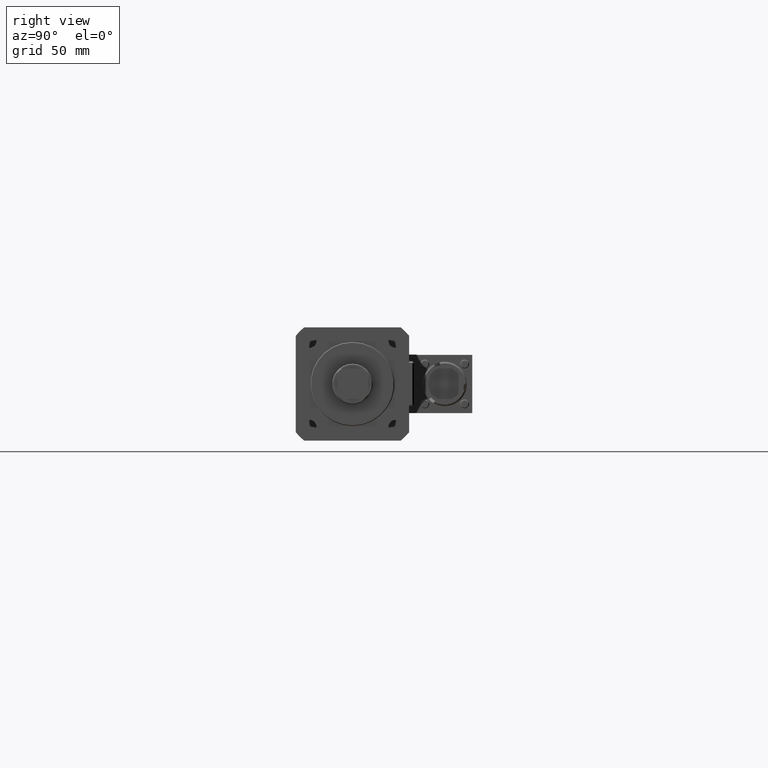
[diagram: clean part render]
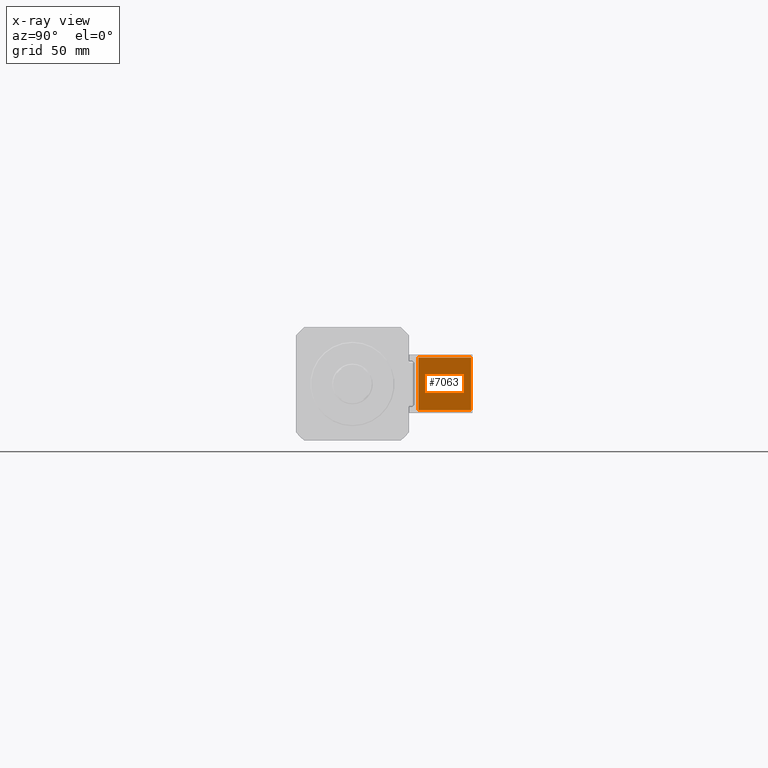
[diagram: x-ray — body ghosted, one internal face saturated and labeled with its STEP entity id]
A machine part, right view, then the same camera in x-ray: the body is ghosted and one INTERNAL B-rep face — a face not visible from any outside direction — is saturated and labeled: STEP entity #7063.
In plain terms, the highlighted planar face has unit normal (1, 0, -0).
Its self-contained STEP definition (entity closure, byte-faithful):
#251 = EDGE_CURVE ( 'NONE', #6156, #6126, #2832, .T. ) ;
#659 = LINE ( 'NONE', #2616, #7862 ) ;
#796 = AXIS2_PLACEMENT_3D ( 'NONE', #1244, #6110, #1924 ) ;
#985 = CARTESIAN_POINT ( 'NONE',  ( -347.0000000000000600, 40.73000000000001100, 16.27000000000000700 ) ) ;
#1244 = CARTESIAN_POINT ( 'NONE',  ( -347.0000000000000600, 0.0000000000000000000, 0.0000000000000000000 ) ) ;
#1510 = CARTESIAN_POINT ( 'NONE',  ( -347.0000000000000600, 73.27000000000001000, -16.26999999999998900 ) ) ;
#1599 = ORIENTED_EDGE ( 'NONE', *, *, #251, .T. ) ;
#1661 = ORIENTED_EDGE ( 'NONE', *, *, #8368, .T. ) ;
#1683 = DIRECTION ( 'NONE',  ( -0.0000000000000000000, -1.000000000000000000, -1.066209880747884100E-016 ) ) ;
#1766 = LINE ( 'NONE', #3824, #5693 ) ;
#1787 = CARTESIAN_POINT ( 'NONE',  ( -347.0000000000000600, 40.73000000000001100, -16.26999999999999200 ) ) ;
#1924 = DIRECTION ( 'NONE',  ( -0.0000000000000000000, 0.0000000000000000000, -1.000000000000000000 ) ) ;
#2218 = EDGE_CURVE ( 'NONE', #6126, #3197, #1766, .T. ) ;
#2616 = CARTESIAN_POINT ( 'NONE',  ( -347.0000000000000600, 73.27000000000001000, -16.26999999999998900 ) ) ;
#2762 = VERTEX_POINT ( 'NONE', #5826 ) ;
#2832 = LINE ( 'NONE', #3487, #6752 ) ;
#3197 = VERTEX_POINT ( 'NONE', #1510 ) ;
#3487 = CARTESIAN_POINT ( 'NONE',  ( -347.0000000000000600, 40.73000000000001100, -16.26999999999999200 ) ) ;
#3824 = CARTESIAN_POINT ( 'NONE',  ( -347.0000000000000600, 40.73000000000001100, -16.26999999999999200 ) ) ;
#4646 = VECTOR ( 'NONE', #1683, 1000.000000000000000 ) ;
#4697 = PLANE ( 'NONE',  #796 ) ;
#5316 = DIRECTION ( 'NONE',  ( 0.0000000000000000000, 1.000000000000000000, 1.066209880747883600E-016 ) ) ;
#5322 = CARTESIAN_POINT ( 'NONE',  ( -347.0000000000000600, 40.73000000000001100, 16.27000000000000700 ) ) ;
#5693 = VECTOR ( 'NONE', #5316, 1000.000000000000000 ) ;
#5821 = EDGE_LOOP ( 'NONE', ( #1661, #1599, #6601, #8029 ) ) ;
#5826 = CARTESIAN_POINT ( 'NONE',  ( -347.0000000000000600, 73.26999999999999600, 16.27000000000001000 ) ) ;
#6110 = DIRECTION ( 'NONE',  ( 1.000000000000000000, 0.0000000000000000000, -0.0000000000000000000 ) ) ;
#6126 = VERTEX_POINT ( 'NONE', #1787 ) ;
#6156 = VERTEX_POINT ( 'NONE', #5322 ) ;
#6260 = EDGE_CURVE ( 'NONE', #3197, #2762, #659, .T. ) ;
#6601 = ORIENTED_EDGE ( 'NONE', *, *, #2218, .T. ) ;
#6724 = LINE ( 'NONE', #985, #4646 ) ;
#6752 = VECTOR ( 'NONE', #6968, 1000.000000000000000 ) ;
#6809 = DIRECTION ( 'NONE',  ( 0.0000000000000000000, -4.264839522991535600E-016, 1.000000000000000000 ) ) ;
#6968 = DIRECTION ( 'NONE',  ( -0.0000000000000000000, -0.0000000000000000000, -1.000000000000000000 ) ) ;
#6974 = FACE_OUTER_BOUND ( 'NONE', #5821, .T. ) ;
#7063 = ADVANCED_FACE ( 'NONE', ( #6974 ), #4697, .T. ) ;
#7862 = VECTOR ( 'NONE', #6809, 1000.000000000000000 ) ;
#8029 = ORIENTED_EDGE ( 'NONE', *, *, #6260, .T. ) ;
#8368 = EDGE_CURVE ( 'NONE', #2762, #6156, #6724, .T. ) ;